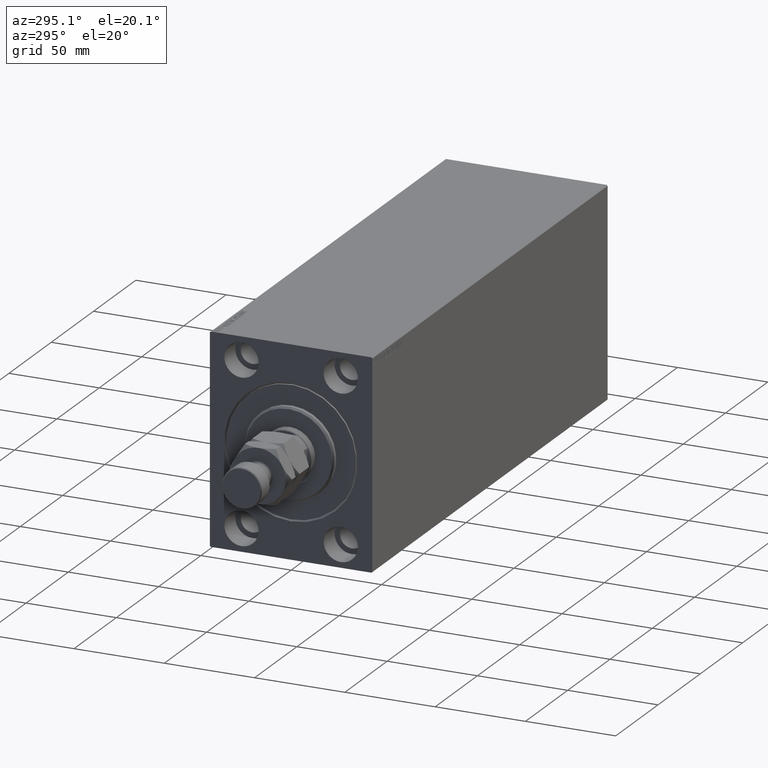
[diagram: clean part render]
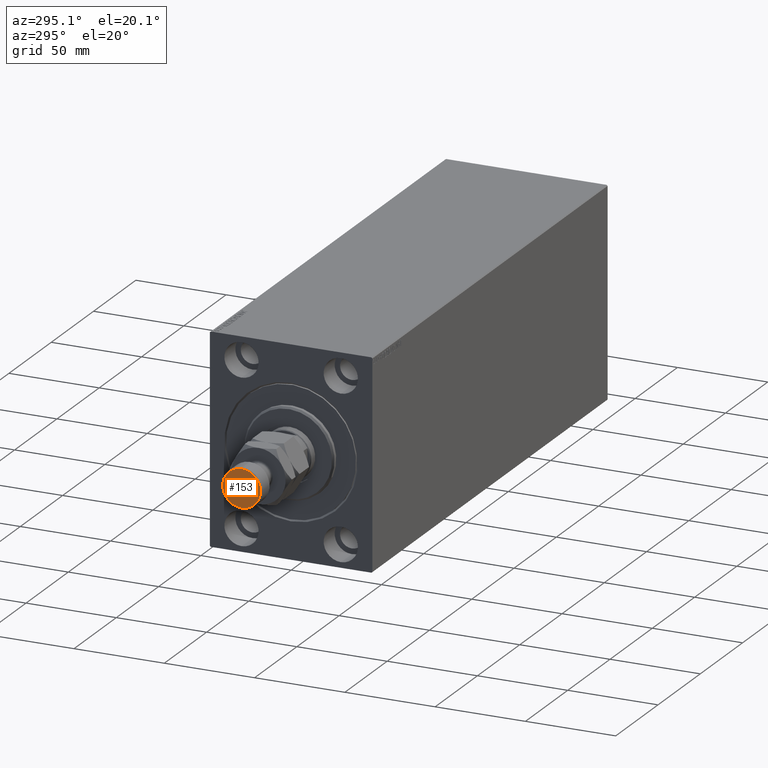
[diagram: same view with one face highlighted and labeled with its STEP entity id]
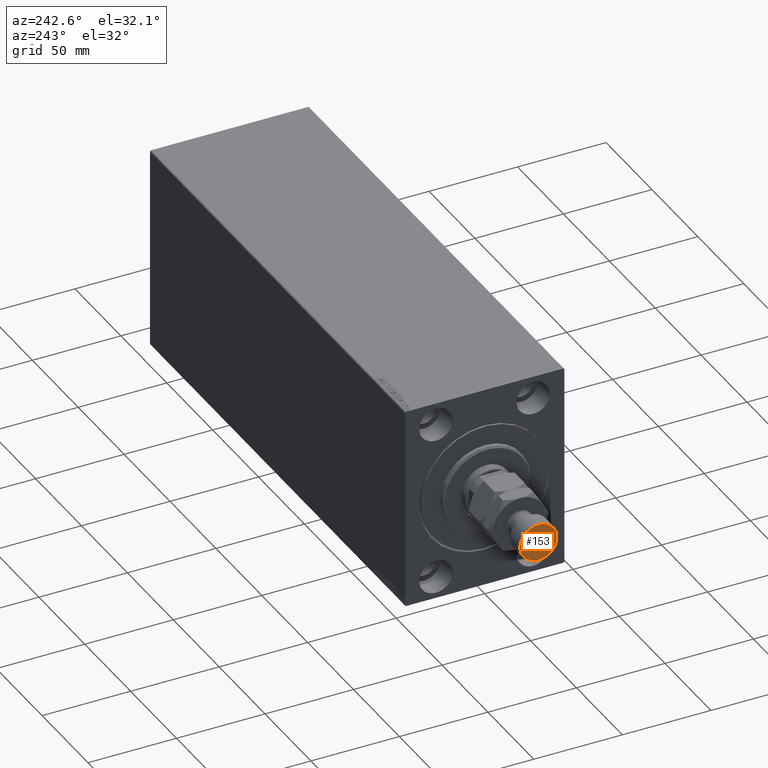
[diagram: same view with one face highlighted and labeled with its STEP entity id]
A machine part, auxiliary view. The second image highlights one B-rep face of the part: STEP entity #153.
A second angle (auxiliary view) of the same face is appended — the face is thin or edge-on in the first view.
In plain terms, the highlighted planar face has unit normal (-1, 0, 0).
Its self-contained STEP definition (entity closure, byte-faithful):
#99 = EDGE_CURVE ( 'NONE', #34732, #28225, #38037, .T. ) ;
#153 = ADVANCED_FACE ( 'NONE', ( #9357 ), #40641, .T. ) ;
#1753 = DIRECTION ( 'NONE',  ( 1.000000000000000000, 0.000000000000000000, -0.000000000000000000 ) ) ;
#8904 = DIRECTION ( 'NONE',  ( 0.000000000000000000, 0.000000000000000000, 1.000000000000000000 ) ) ;
#9357 = FACE_OUTER_BOUND ( 'NONE', #18061, .T. ) ;
#9878 = EDGE_CURVE ( 'NONE', #28225, #34732, #33072, .T. ) ;
#10581 = ORIENTED_EDGE ( 'NONE', *, *, #99, .T. ) ;
#16712 = DIRECTION ( 'NONE',  ( 1.000000000000000000, 0.000000000000000000, 0.000000000000000000 ) ) ;
#18061 = EDGE_LOOP ( 'NONE', ( #44704, #10581 ) ) ;
#19262 = CARTESIAN_POINT ( 'NONE',  ( 0.000000000000000000, 0.000000000000000000, 45.00000000000000711 ) ) ;
#19866 = AXIS2_PLACEMENT_3D ( 'NONE', #42925, #32353, #35786 ) ;
#28225 = VERTEX_POINT ( 'NONE', #37440 ) ;
#32353 = DIRECTION ( 'NONE',  ( 0.000000000000000000, 0.000000000000000000, 1.000000000000000000 ) ) ;
#32904 = AXIS2_PLACEMENT_3D ( 'NONE', #40866, #41099, #1753 ) ;
#33072 = CIRCLE ( 'NONE', #19866, 10.50000000000000178 ) ;
#34732 = VERTEX_POINT ( 'NONE', #42340 ) ;
#35786 = DIRECTION ( 'NONE',  ( 1.000000000000000000, 0.000000000000000000, 0.000000000000000000 ) ) ;
#37440 = CARTESIAN_POINT ( 'NONE',  ( -10.50000000000000178, 0.000000000000000000, 45.00000000000000711 ) ) ;
#38037 = CIRCLE ( 'NONE', #40998, 10.50000000000000178 ) ;
#40641 = PLANE ( 'NONE',  #32904 ) ;
#40866 = CARTESIAN_POINT ( 'NONE',  ( 0.000000000000000000, 0.000000000000000000, 45.00000000000000711 ) ) ;
#40998 = AXIS2_PLACEMENT_3D ( 'NONE', #19262, #8904, #16712 ) ;
#41099 = DIRECTION ( 'NONE',  ( 0.000000000000000000, 0.000000000000000000, 1.000000000000000000 ) ) ;
#42340 = CARTESIAN_POINT ( 'NONE',  ( 10.50000000000000178, 1.316495309083404815E-15, 45.00000000000000711 ) ) ;
#42925 = CARTESIAN_POINT ( 'NONE',  ( 0.000000000000000000, 0.000000000000000000, 45.00000000000000711 ) ) ;
#44704 = ORIENTED_EDGE ( 'NONE', *, *, #9878, .T. ) ;